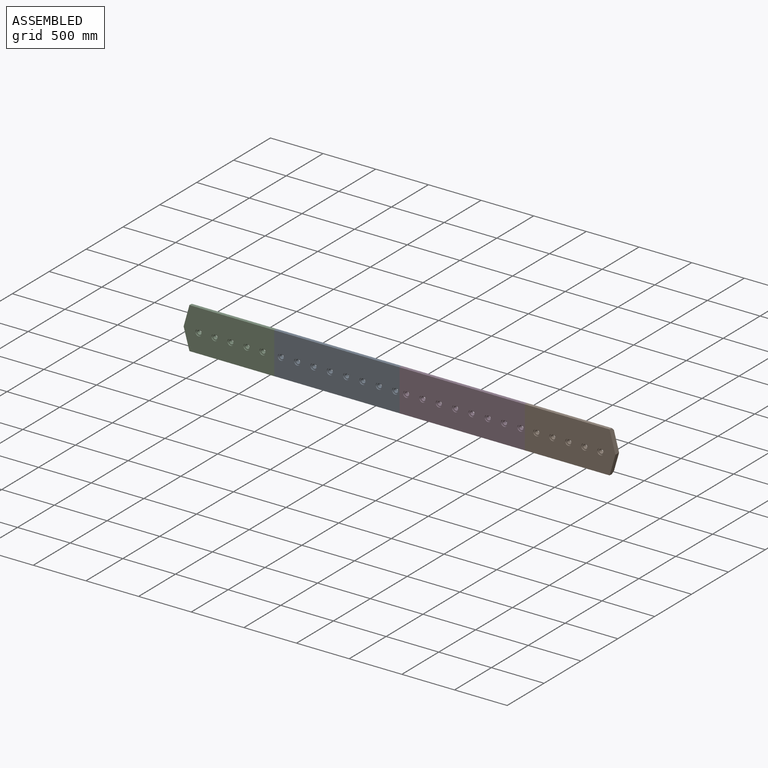
[diagram: assembled view]
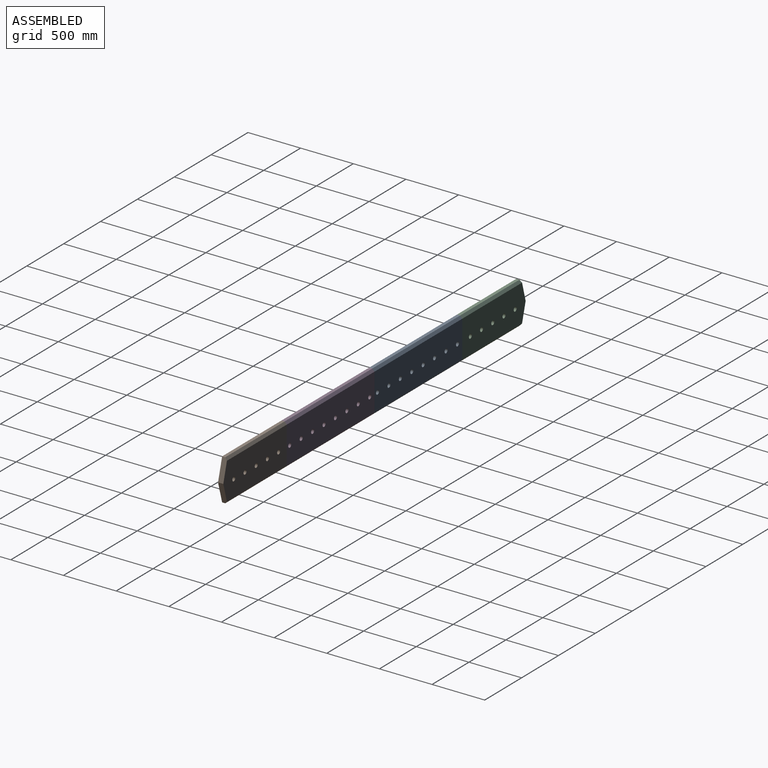
[diagram: assembled view, second angle]
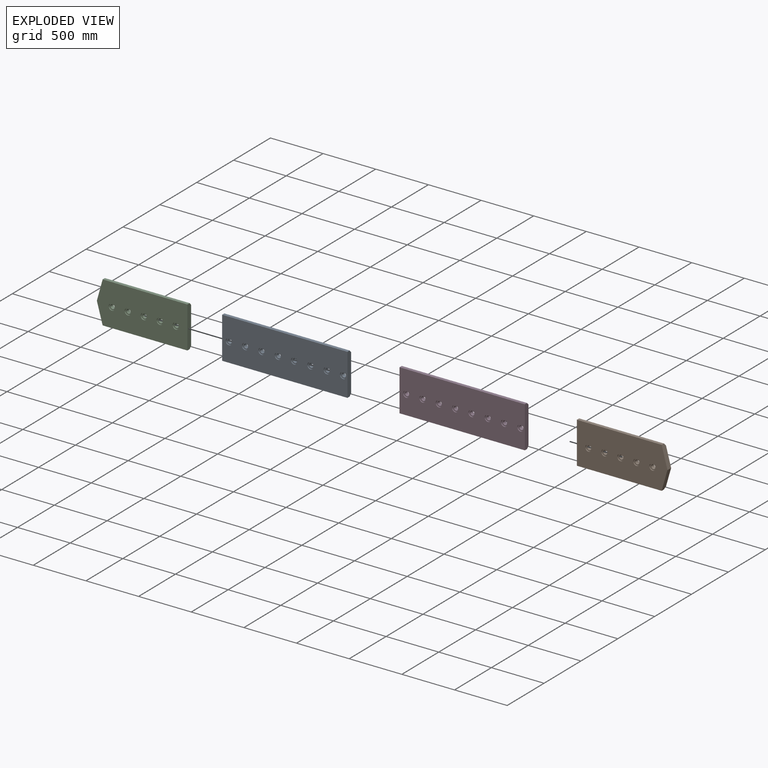
[diagram: exploded view]
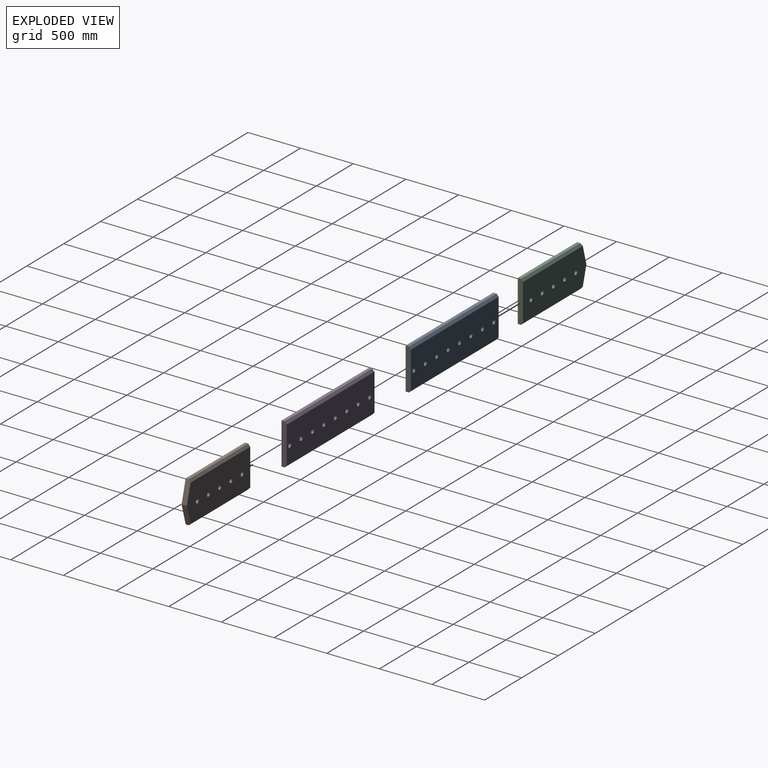
[diagram: exploded view, second angle]
ASSEMBLY  parts=4 mates=3
PART A: 32 faces, bbox 1190x50x395 mm
  f0: plane 395x50mm, normal (-1,0,0), area 19302.8mm2, adj f1,f2,f3,f5,f6,f7
  f1: plane 1190x30mm, normal (0,0,1), area 35700mm2, adj f0,f4,f5,f7
  f2: plane 1190x30mm, normal (0,0,-1), area 35700mm2, adj f0,f4,f5,f6
  f3: plane 1190x350.28mm, normal (0,1,0), area 406778.5mm2, adj f0,f4,f6,f7,f8,f11,f14,f17
  f4: plane 395x50mm, normal (1,0,0), area 19302.8mm2, adj f1,f2,f3,f5,f6,f7
  f5: plane 1190x395mm, normal (0,-1,0), area 447430.5mm2, adj f0,f1,f2,f4,f10,f13,f16,f19
  f6: plane 1190x22.36mm, normal (0,0.75,-0.67), area 35700mm2, adj f0,f2,f3,f4
  f7: plane 1190x22.36mm, normal (0,0.75,0.67), area 35700mm2, adj f0,f1,f3,f4
  f8: cylinder r=20mm len=40mm, axis (0,-1,0), area 5026.5mm2, adj f3,f9
  f9: plane 60x60mm, normal (0,-1,0), area 1570.8mm2, adj f8,f10
  f10: cylinder r=30mm len=60mm, axis (0,-1,0), area 1885mm2, adj f5,f9
  f11: cylinder r=20mm len=40mm, axis (0,-1,0), area 5026.5mm2, adj f3,f12
  f12: plane 60x60mm, normal (0,-1,0), area 1570.8mm2, adj f11,f13
  f13: cylinder r=30mm len=60mm, axis (0,-1,0), area 1885mm2, adj f5,f12
  f14: cylinder r=20mm len=40mm, axis (0,-1,0), area 5026.5mm2, adj f3,f15
  f15: plane 60x60mm, normal (0,-1,0), area 1570.8mm2, adj f14,f16
  f16: cylinder r=30mm len=60mm, axis (0,-1,0), area 1885mm2, adj f5,f15
  f17: cylinder r=20mm len=40mm, axis (0,-1,0), area 5026.5mm2, adj f3,f18
  f18: plane 60x60mm, normal (0,-1,0), area 1570.8mm2, adj f17,f19
  f19: cylinder r=30mm len=60mm, axis (0,-1,0), area 1885mm2, adj f5,f18
  f20: cylinder r=20mm len=40mm, axis (0,-1,0), area 5026.5mm2, adj f3,f21
  f21: plane 60x60mm, normal (0,-1,0), area 1570.8mm2, adj f20,f22
  f22: cylinder r=30mm len=60mm, axis (0,-1,0), area 1885mm2, adj f5,f21
  f23: cylinder r=20mm len=40mm, axis (0,-1,0), area 5026.5mm2, adj f3,f24
  f24: plane 60x60mm, normal (0,-1,0), area 1570.8mm2, adj f23,f25
  f25: cylinder r=30mm len=60mm, axis (0,-1,0), area 1885mm2, adj f5,f24
  f26: cylinder r=20mm len=40mm, axis (0,-1,0), area 5026.5mm2, adj f3,f27
  f27: plane 60x60mm, normal (0,-1,0), area 1570.8mm2, adj f26,f28
  f28: cylinder r=30mm len=60mm, axis (0,-1,0), area 1885mm2, adj f5,f27
  f29: cylinder r=20mm len=40mm, axis (0,-1,0), area 5026.5mm2, adj f3,f30
  f30: plane 60x60mm, normal (0,-1,0), area 1570.8mm2, adj f29,f31
  f31: cylinder r=30mm len=60mm, axis (0,-1,0), area 1885mm2, adj f5,f30
PART B: 24 faces, bbox 860x50x395 mm
  f0: plane 395x50mm, normal (-1,0,0), area 19302.8mm2, adj f1,f2,f3,f6,f22,f23
  f1: plane 805x30mm, normal (0,0,1), area 24150mm2, adj f0,f5,f6,f22
  f2: plane 805x30mm, normal (0,0,-1), area 24150mm2, adj f0,f4,f6,f23
  f3: plane 860x350.28mm, normal (0,1,0), area 286414.3mm2, adj f0,f4,f5,f7,f10,f13,f16,f19
  f4: plane 192.05x55mm, normal (0.96,0,-0.28), area 9755.8mm2, adj f2,f3,f5,f6,f23
  f5: plane 202.95x55mm, normal (0.97,0,0.26), area 10282mm2, adj f1,f3,f4,f6,f22
  f6: plane 860x395mm, normal (0,-1,0), area 314700.3mm2, adj f0,f1,f2,f4,f5,f9,f12,f15
  f7: cylinder r=20mm len=40mm, axis (0,-1,0), area 5026.5mm2, adj f3,f8
  f8: plane 60x60mm, normal (0,-1,0), area 1570.8mm2, adj f7,f9
  f9: cylinder r=30mm len=60mm, axis (0,-1,0), area 1885mm2, adj f6,f8
  f10: cylinder r=20mm len=40mm, axis (0,-1,0), area 5026.5mm2, adj f3,f11
  f11: plane 60x60mm, normal (0,-1,0), area 1570.8mm2, adj f10,f12
  f12: cylinder r=30mm len=60mm, axis (0,-1,0), area 1885mm2, adj f6,f11
  f13: cylinder r=20mm len=40mm, axis (0,-1,0), area 5026.5mm2, adj f3,f14
  f14: plane 60x60mm, normal (0,-1,0), area 1570.8mm2, adj f13,f15
  f15: cylinder r=30mm len=60mm, axis (0,-1,0), area 1885mm2, adj f6,f14
  f16: cylinder r=20mm len=40mm, axis (0,-1,0), area 5026.5mm2, adj f3,f17
  f17: plane 60x60mm, normal (0,-1,0), area 1570.8mm2, adj f16,f18
  f18: cylinder r=30mm len=60mm, axis (0,-1,0), area 1885mm2, adj f6,f17
  f19: cylinder r=20mm len=40mm, axis (0,-1,0), area 5026.5mm2, adj f3,f20
  f20: plane 60x60mm, normal (0,-1,0), area 1570.8mm2, adj f19,f21
  f21: cylinder r=30mm len=60mm, axis (0,-1,0), area 1885mm2, adj f6,f20
  f22: plane 811.06x22.36mm, normal (0,0.75,0.67), area 24240.9mm2, adj f0,f1,f3,f5
  f23: plane 811.4x22.36mm, normal (0,0.75,-0.67), area 24246.1mm2, adj f0,f2,f3,f4
PART C: 24 faces, bbox 860x50x395 mm
  f0: plane 395x50mm, normal (1,0,0), area 19302.8mm2, adj f3,f4,f5,f6,f22,f23
  f1: plane 197.5x55mm, normal (-0.96,0,0.27), area 10018.6mm2, adj f2,f3,f4,f6,f23
  f2: plane 197.5x55mm, normal (-0.96,0,-0.27), area 10018.6mm2, adj f1,f3,f5,f6,f22
  f3: plane 860x350.28mm, normal (0,1,0), area 286414.4mm2, adj f0,f1,f2,f7,f10,f13,f16,f19
  f4: plane 805x30mm, normal (0,0,1), area 24150mm2, adj f0,f1,f6,f23
  f5: plane 805x30mm, normal (0,0,-1), area 24150mm2, adj f0,f2,f6,f22
  f6: plane 860x395mm, normal (0,-1,0), area 314700.3mm2, adj f0,f1,f2,f4,f5,f9,f12,f15
  f7: cylinder r=20mm len=40mm, axis (0,-1,0), area 5026.5mm2, adj f3,f8
  f8: plane 60x60mm, normal (0,-1,0), area 1570.8mm2, adj f7,f9
  f9: cylinder r=30mm len=60mm, axis (0,-1,0), area 1885mm2, adj f6,f8
  f10: cylinder r=20mm len=40mm, axis (0,-1,0), area 5026.5mm2, adj f3,f11
  f11: plane 60x60mm, normal (0,-1,0), area 1570.8mm2, adj f10,f12
  f12: cylinder r=30mm len=60mm, axis (0,-1,0), area 1885mm2, adj f6,f11
  f13: cylinder r=20mm len=40mm, axis (0,-1,0), area 5026.5mm2, adj f3,f14
  f14: plane 60x60mm, normal (0,-1,0), area 1570.8mm2, adj f13,f15
  f15: cylinder r=30mm len=60mm, axis (0,-1,0), area 1885mm2, adj f6,f14
  f16: cylinder r=20mm len=40mm, axis (0,-1,0), area 5026.5mm2, adj f3,f17
  f17: plane 60x60mm, normal (0,-1,0), area 1570.8mm2, adj f16,f18
  f18: cylinder r=30mm len=60mm, axis (0,-1,0), area 1885mm2, adj f6,f17
  f19: cylinder r=20mm len=40mm, axis (0,-1,0), area 5026.5mm2, adj f3,f20
  f20: plane 60x60mm, normal (0,-1,0), area 1570.8mm2, adj f19,f21
  f21: cylinder r=30mm len=60mm, axis (0,-1,0), area 1885mm2, adj f6,f20
  f22: plane 811.23x22.36mm, normal (0,0.75,-0.67), area 24243.4mm2, adj f0,f2,f3,f5
  f23: plane 811.23x22.36mm, normal (0,0.75,0.67), area 24243.4mm2, adj f0,f1,f3,f4
PART D: same geometry as A
PLACE A t=(717.95,-133.59,11.15)mm
PLACE B t=(2842.89,-133.59,28.25)mm
PLACE C t=(-331.71,-133.59,-5.72)mm
PLACE D t=(1907.95,-133.59,11.15)mm
MATE fastened B.f0 <-> D.f4  axis (-1,0,0) through (2495.48,-159.01,33.7)mm
MATE fastened D.f0 <-> A.f4  axis (-1,0,0) through (1305.48,-143.59,220.02)mm
MATE fastened A.f0 <-> C.f0  axis (-1,0,0) through (115.48,-133.59,208.84)mm
